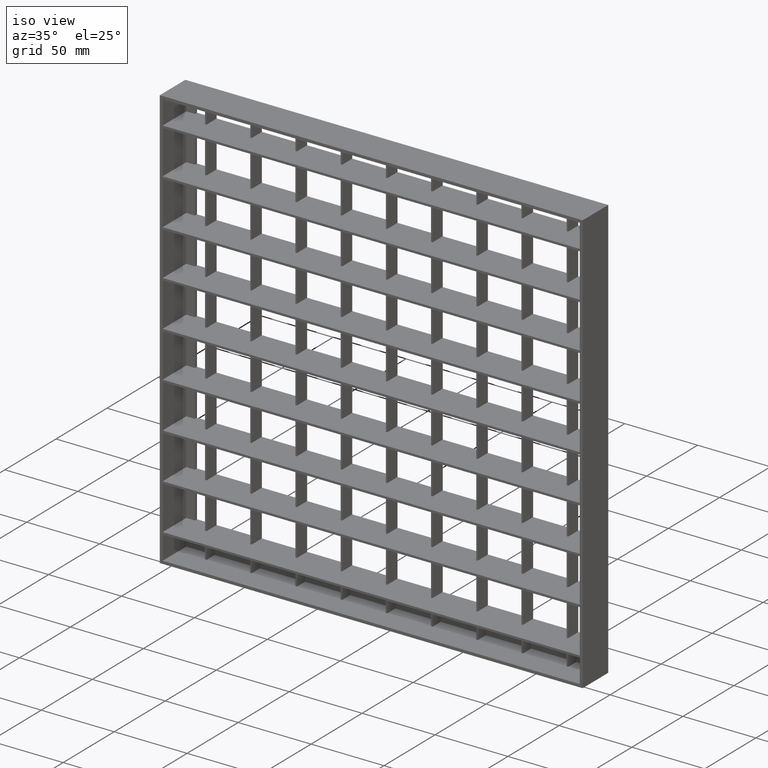
[diagram: clean part render]
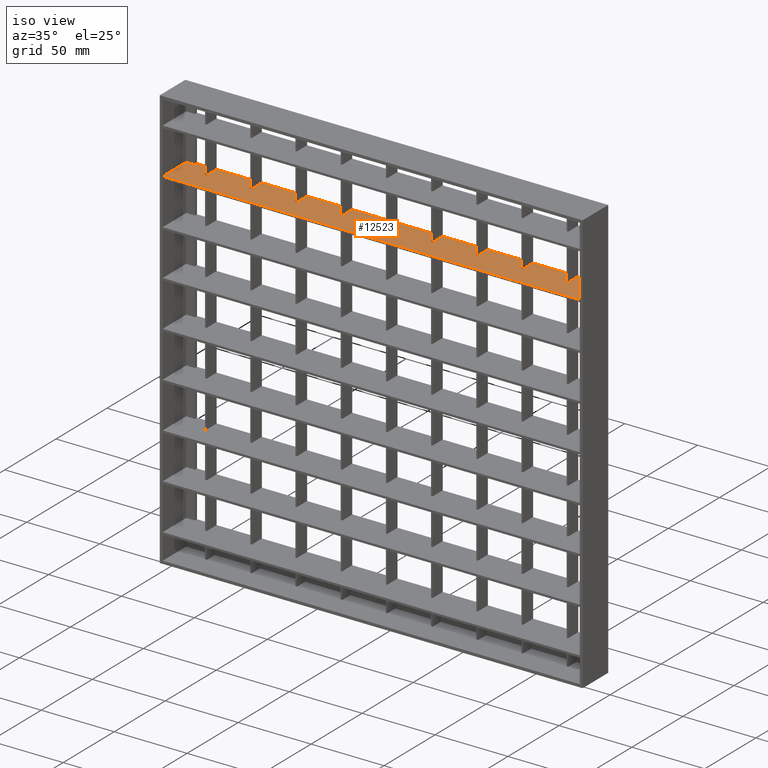
[diagram: same view with one face highlighted and labeled with its STEP entity id]
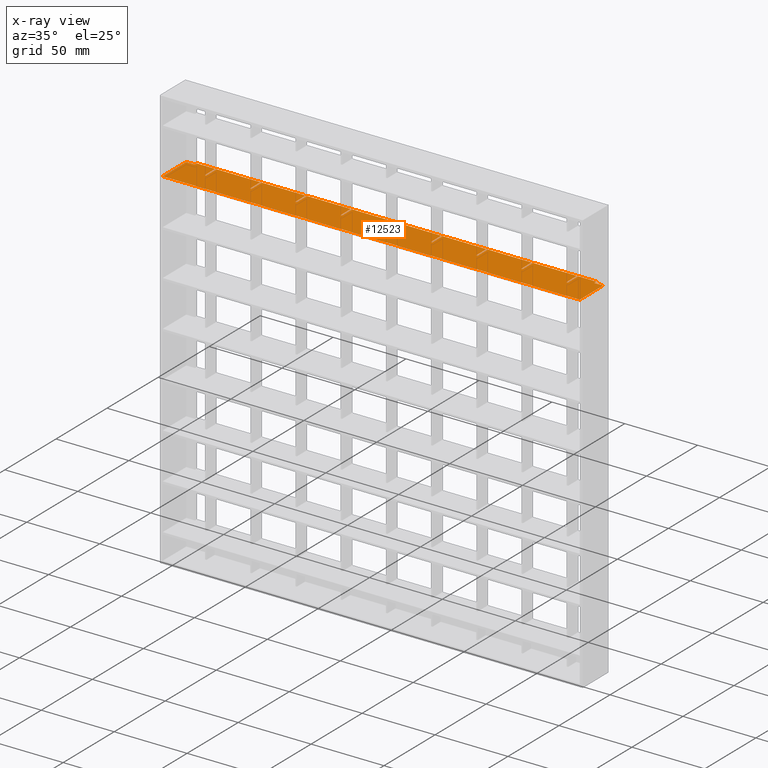
[diagram: x-ray of the same camera — body ghosted, the highlighted face saturated]
A machine part, iso view. The second image highlights one B-rep face of the part: STEP entity #12523.
The next image is the same camera in x-ray: the body ghosted, the highlighted face saturated — about 0% of this face is hidden behind the body in this view.
In plain terms, the highlighted planar face has unit normal (0, 0, 1).
Its self-contained STEP definition (entity closure, byte-faithful):
#14 = VECTOR ( 'NONE', #2227, 1000.000000000000000 ) ;
#21 = DIRECTION ( 'NONE',  ( 0.0000000000000000000, -1.000000000000000000, 0.0000000000000000000 ) ) ;
#92 = LINE ( 'NONE', #3761, #1785 ) ;
#94 = VECTOR ( 'NONE', #9238, 1000.000000000000000 ) ;
#158 = ORIENTED_EDGE ( 'NONE', *, *, #13160, .F. ) ;
#162 = CARTESIAN_POINT ( 'NONE',  ( 269.5000000000001100, -12.49999999999987700, -49.75000000000037700 ) ) ;
#224 = DIRECTION ( 'NONE',  ( -1.000000000000000000, 4.336808689942014300E-016, 0.0000000000000000000 ) ) ;
#242 = CARTESIAN_POINT ( 'NONE',  ( 206.5000000000001100, 12.50000000000009100, -49.75000000000037700 ) ) ;
#255 = VECTOR ( 'NONE', #4600, 1000.000000000000000 ) ;
#301 = CARTESIAN_POINT ( 'NONE',  ( 238.5000000000001700, -12.49999999999987700, -49.75000000000037700 ) ) ;
#304 = LINE ( 'NONE', #162, #7972 ) ;
#305 = VECTOR ( 'NONE', #1150, 1000.000000000000000 ) ;
#366 = VERTEX_POINT ( 'NONE', #13462 ) ;
#377 = VERTEX_POINT ( 'NONE', #2865 ) ;
#403 = DIRECTION ( 'NONE',  ( -1.000000000000000000, 4.336808689942014300E-016, 0.0000000000000000000 ) ) ;
#435 = CARTESIAN_POINT ( 'NONE',  ( 144.4999999999999700, -12.49999999999987700, -49.75000000000037700 ) ) ;
#470 = CARTESIAN_POINT ( 'NONE',  ( 113.4999999999999600, 2.500000000000002200, -49.75000000000037700 ) ) ;
#667 = LINE ( 'NONE', #6529, #9087 ) ;
#682 = CARTESIAN_POINT ( 'NONE',  ( 313.0449595727364500, -12.49999999999987700, -49.75000000000037700 ) ) ;
#688 = DIRECTION ( 'NONE',  ( -1.000000000000000000, 4.336808689942014300E-016, 0.0000000000000000000 ) ) ;
#691 = DIRECTION ( 'NONE',  ( -0.0000000000000000000, 1.000000000000000000, 0.0000000000000000000 ) ) ;
#737 = ORIENTED_EDGE ( 'NONE', *, *, #3270, .T. ) ;
#743 = CARTESIAN_POINT ( 'NONE',  ( 313.0449595727364500, 2.500000000000101300, -49.75000000000037700 ) ) ;
#806 = EDGE_CURVE ( 'NONE', #13485, #8645, #15232, .T. ) ;
#868 = CARTESIAN_POINT ( 'NONE',  ( 83.49999999999995700, -12.49999999999987700, -49.75000000000037700 ) ) ;
#921 = VERTEX_POINT ( 'NONE', #470 ) ;
#923 = DIRECTION ( 'NONE',  ( -0.0000000000000000000, 1.000000000000000000, 0.0000000000000000000 ) ) ;
#1024 = ORIENTED_EDGE ( 'NONE', *, *, #7274, .F. ) ;
#1035 = LINE ( 'NONE', #14538, #11109 ) ;
#1150 = DIRECTION ( 'NONE',  ( -8.673617379884035500E-016, 1.000000000000000000, 0.0000000000000000000 ) ) ;
#1164 = LINE ( 'NONE', #10029, #3775 ) ;
#1260 = EDGE_CURVE ( 'NONE', #1367, #1859, #13337, .T. ) ;
#1316 = DIRECTION ( 'NONE',  ( 1.000000000000000000, 4.336808689942014300E-016, -0.0000000000000000000 ) ) ;
#1348 = ORIENTED_EDGE ( 'NONE', *, *, #5459, .F. ) ;
#1367 = VERTEX_POINT ( 'NONE', #11258 ) ;
#1375 = ORIENTED_EDGE ( 'NONE', *, *, #11281, .T. ) ;
#1456 = EDGE_CURVE ( 'NONE', #13142, #8380, #15420, .T. ) ;
#1468 = VERTEX_POINT ( 'NONE', #7040 ) ;
#1504 = VECTOR ( 'NONE', #5454, 1000.000000000000000 ) ;
#1510 = VERTEX_POINT ( 'NONE', #9559 ) ;
#1534 = VECTOR ( 'NONE', #688, 1000.000000000000000 ) ;
#1582 = DIRECTION ( 'NONE',  ( -0.0000000000000000000, 1.000000000000000000, 0.0000000000000000000 ) ) ;
#1594 = VERTEX_POINT ( 'NONE', #9310 ) ;
#1671 = CARTESIAN_POINT ( 'NONE',  ( 313.0449595727364500, 2.499999999999983100, -49.75000000000037700 ) ) ;
#1766 = LINE ( 'NONE', #11300, #12956 ) ;
#1785 = VECTOR ( 'NONE', #9620, 1000.000000000000000 ) ;
#1797 = VERTEX_POINT ( 'NONE', #4496 ) ;
#1859 = VERTEX_POINT ( 'NONE', #7937 ) ;
#1938 = LINE ( 'NONE', #2803, #13141 ) ;
#1980 = ORIENTED_EDGE ( 'NONE', *, *, #12050, .T. ) ;
#2000 = VECTOR ( 'NONE', #6057, 1000.000000000000000 ) ;
#2056 = CARTESIAN_POINT ( 'NONE',  ( 269.5000000000001100, 2.500000000000001800, -49.75000000000037700 ) ) ;
#2059 = ORIENTED_EDGE ( 'NONE', *, *, #1456, .F. ) ;
#2060 = VECTOR ( 'NONE', #9118, 1000.000000000000000 ) ;
#2141 = DIRECTION ( 'NONE',  ( -1.000000000000000000, 4.336808689942014300E-016, 0.0000000000000000000 ) ) ;
#2149 = CARTESIAN_POINT ( 'NONE',  ( 288.0000000000001100, -12.49999999999987700, -49.75000000000037700 ) ) ;
#2211 = VECTOR ( 'NONE', #14647, 1000.000000000000000 ) ;
#2227 = DIRECTION ( 'NONE',  ( -1.000000000000000000, 0.0000000000000000000, 0.0000000000000000000 ) ) ;
#2298 = LINE ( 'NONE', #10340, #1534 ) ;
#2357 = CARTESIAN_POINT ( 'NONE',  ( 175.5000000000001100, 12.50000000000008200, -49.75000000000037700 ) ) ;
#2381 = ORIENTED_EDGE ( 'NONE', *, *, #4652, .T. ) ;
#2398 = LINE ( 'NONE', #14534, #14730 ) ;
#2401 = CARTESIAN_POINT ( 'NONE',  ( 207.5000000000001400, -12.49999999999987700, -49.75000000000037700 ) ) ;
#2408 = VECTOR ( 'NONE', #8704, 1000.000000000000000 ) ;
#2621 = VERTEX_POINT ( 'NONE', #3412 ) ;
#2628 = VECTOR ( 'NONE', #1582, 1000.000000000000000 ) ;
#2726 = LINE ( 'NONE', #7673, #11123 ) ;
#2752 = CARTESIAN_POINT ( 'NONE',  ( 145.4999999999999700, 12.50000000000007100, -49.75000000000037700 ) ) ;
#2779 = DIRECTION ( 'NONE',  ( 0.0000000000000000000, -1.000000000000000000, 0.0000000000000000000 ) ) ;
#2803 = CARTESIAN_POINT ( 'NONE',  ( 82.49999999999995700, -12.49999999999987700, -49.75000000000037700 ) ) ;
#2834 = DIRECTION ( 'NONE',  ( -1.000000000000000000, -3.061616997868382600E-016, 0.0000000000000000000 ) ) ;
#2865 = CARTESIAN_POINT ( 'NONE',  ( 7.999999999999994700, 12.50000000000000500, -49.75000000000037700 ) ) ;
#2937 = LINE ( 'NONE', #6003, #2000 ) ;
#2942 = LINE ( 'NONE', #4259, #14340 ) ;
#3060 = EDGE_CURVE ( 'NONE', #10833, #7427, #11610, .T. ) ;
#3165 = ORIENTED_EDGE ( 'NONE', *, *, #5640, .F. ) ;
#3270 = EDGE_CURVE ( 'NONE', #4948, #13756, #1164, .T. ) ;
#3412 = CARTESIAN_POINT ( 'NONE',  ( 21.49999999999996400, 2.500000000000002200, -49.75000000000037700 ) ) ;
#3445 = VECTOR ( 'NONE', #224, 1000.000000000000000 ) ;
#3450 = LINE ( 'NONE', #10642, #255 ) ;
#3452 = DIRECTION ( 'NONE',  ( -1.000000000000000000, 0.0000000000000000000, 0.0000000000000000000 ) ) ;
#3456 = CARTESIAN_POINT ( 'NONE',  ( 83.49999999999995700, 12.50000000000005300, -49.75000000000037700 ) ) ;
#3486 = ORIENTED_EDGE ( 'NONE', *, *, #12661, .T. ) ;
#3535 = VERTEX_POINT ( 'NONE', #6979 ) ;
#3722 = EDGE_LOOP ( 'NONE', ( #8184, #13285, #10387, #10248, #11620, #2381, #13446, #5255, #13487, #6821, #4673, #14271, #6320, #7932, #12884, #1980, #7638, #7156, #3165, #15532, #6710, #9218, #15003, #12302, #13017, #1348, #5209, #13856, #737, #1024, #158, #8493, #1375, #12099, #10530, #10448, #5234, #14784, #4239, #4540, #2059, #14577, #8916, #3486 ) ) ;
#3761 = CARTESIAN_POINT ( 'NONE',  ( 2.000000000000002700, -12.50000000000000000, -49.75000000000034800 ) ) ;
#3775 = VECTOR ( 'NONE', #14849, 1000.000000000000000 ) ;
#3946 = CARTESIAN_POINT ( 'NONE',  ( 313.0449595727364500, 12.50000000000012400, -49.75000000000037700 ) ) ;
#3952 = VECTOR ( 'NONE', #14280, 1000.000000000000000 ) ;
#4012 = EDGE_CURVE ( 'NONE', #10833, #14935, #12137, .T. ) ;
#4036 = EDGE_CURVE ( 'NONE', #1594, #7427, #6534, .T. ) ;
#4146 = LINE ( 'NONE', #4303, #7510 ) ;
#4166 = EDGE_CURVE ( 'NONE', #1797, #9855, #4871, .T. ) ;
#4239 = ORIENTED_EDGE ( 'NONE', *, *, #12678, .T. ) ;
#4259 = CARTESIAN_POINT ( 'NONE',  ( 313.0449595727364500, 2.500000000000128800, -49.75000000000037700 ) ) ;
#4303 = CARTESIAN_POINT ( 'NONE',  ( 268.5000000000001100, -12.49999999999987700, -49.75000000000037700 ) ) ;
#4464 = CARTESIAN_POINT ( 'NONE',  ( 313.0449595727364500, 12.50000000000012400, -49.75000000000037700 ) ) ;
#4496 = CARTESIAN_POINT ( 'NONE',  ( 82.49999999999995700, 2.500000000000000900, -49.75000000000037700 ) ) ;
#4540 = ORIENTED_EDGE ( 'NONE', *, *, #15141, .T. ) ;
#4559 = VERTEX_POINT ( 'NONE', #7310 ) ;
#4597 = VECTOR ( 'NONE', #21, 1000.000000000000000 ) ;
#4600 = DIRECTION ( 'NONE',  ( -1.000000000000000000, -3.061616997868382600E-016, 0.0000000000000000000 ) ) ;
#4640 = LINE ( 'NONE', #5745, #13773 ) ;
#4642 = LINE ( 'NONE', #13483, #2211 ) ;
#4652 = EDGE_CURVE ( 'NONE', #11149, #12003, #12471, .T. ) ;
#4673 = ORIENTED_EDGE ( 'NONE', *, *, #1260, .T. ) ;
#4750 = DIRECTION ( 'NONE',  ( -1.000000000000000000, -3.061616997868382600E-016, 0.0000000000000000000 ) ) ;
#4786 = EDGE_CURVE ( 'NONE', #1859, #15291, #15310, .T. ) ;
#4794 = CARTESIAN_POINT ( 'NONE',  ( 20.49999999999996400, 12.50000000000000200, -49.75000000000037700 ) ) ;
#4871 = LINE ( 'NONE', #743, #2060 ) ;
#4940 = CARTESIAN_POINT ( 'NONE',  ( 2.000000000000002700, 10.50000000000000500, -49.75000000000037700 ) ) ;
#4948 = VERTEX_POINT ( 'NONE', #8161 ) ;
#5005 = VERTEX_POINT ( 'NONE', #10863 ) ;
#5097 = EDGE_CURVE ( 'NONE', #6989, #8645, #2937, .T. ) ;
#5129 = DIRECTION ( 'NONE',  ( -0.0000000000000000000, 1.000000000000000000, 0.0000000000000000000 ) ) ;
#5209 = ORIENTED_EDGE ( 'NONE', *, *, #4166, .F. ) ;
#5234 = ORIENTED_EDGE ( 'NONE', *, *, #9942, .T. ) ;
#5255 = ORIENTED_EDGE ( 'NONE', *, *, #11321, .T. ) ;
#5454 = DIRECTION ( 'NONE',  ( 0.0000000000000000000, -1.000000000000000000, 0.0000000000000000000 ) ) ;
#5459 = EDGE_CURVE ( 'NONE', #9855, #11520, #15090, .T. ) ;
#5505 = CARTESIAN_POINT ( 'NONE',  ( 114.4999999999999600, -12.49999999999987700, -49.75000000000037700 ) ) ;
#5516 = LINE ( 'NONE', #2401, #4597 ) ;
#5569 = LINE ( 'NONE', #1671, #9881 ) ;
#5636 = CARTESIAN_POINT ( 'NONE',  ( 269.5000000000001100, 12.50000000000000200, -49.75000000000034800 ) ) ;
#5640 = EDGE_CURVE ( 'NONE', #14935, #13485, #11152, .T. ) ;
#5745 = CARTESIAN_POINT ( 'NONE',  ( 313.0449595727364500, 2.499999999999969400, -49.75000000000037700 ) ) ;
#5842 = CARTESIAN_POINT ( 'NONE',  ( 313.0449595727364500, -12.49999999999987700, -49.75000000000037700 ) ) ;
#5855 = VECTOR ( 'NONE', #5129, 1000.000000000000000 ) ;
#5863 = VERTEX_POINT ( 'NONE', #7657 ) ;
#5925 = CARTESIAN_POINT ( 'NONE',  ( 20.49999999999996400, 2.500000000000001800, -49.75000000000037700 ) ) ;
#6003 = CARTESIAN_POINT ( 'NONE',  ( 313.0449595727364500, 12.50000000000012400, -49.75000000000037700 ) ) ;
#6057 = DIRECTION ( 'NONE',  ( -1.000000000000000000, -3.061616997868382600E-016, 0.0000000000000000000 ) ) ;
#6114 = AXIS2_PLACEMENT_3D ( 'NONE', #682, #13935, #10334 ) ;
#6171 = VECTOR ( 'NONE', #2834, 1000.000000000000000 ) ;
#6196 = VERTEX_POINT ( 'NONE', #2056 ) ;
#6264 = DIRECTION ( 'NONE',  ( -1.000000000000000000, -3.061616997868382600E-016, 0.0000000000000000000 ) ) ;
#6320 = ORIENTED_EDGE ( 'NONE', *, *, #11037, .T. ) ;
#6395 = DIRECTION ( 'NONE',  ( 0.0000000000000000000, -1.000000000000000000, 0.0000000000000000000 ) ) ;
#6480 = CARTESIAN_POINT ( 'NONE',  ( 237.5000000000001400, -12.49999999999987700, -49.75000000000037700 ) ) ;
#6529 = CARTESIAN_POINT ( 'NONE',  ( 20.49999999999996400, -12.49999999999987700, -49.75000000000037700 ) ) ;
#6534 = LINE ( 'NONE', #5505, #14191 ) ;
#6592 = VECTOR ( 'NONE', #4750, 1000.000000000000000 ) ;
#6629 = CARTESIAN_POINT ( 'NONE',  ( 144.4999999999999700, 2.500000000000001800, -49.75000000000037700 ) ) ;
#6673 = VERTEX_POINT ( 'NONE', #5636 ) ;
#6710 = ORIENTED_EDGE ( 'NONE', *, *, #3060, .T. ) ;
#6821 = ORIENTED_EDGE ( 'NONE', *, *, #13373, .T. ) ;
#6859 = CARTESIAN_POINT ( 'NONE',  ( 144.4999999999999700, 12.50000000000000200, -49.75000000000037700 ) ) ;
#6928 = LINE ( 'NONE', #12733, #9185 ) ;
#6979 = CARTESIAN_POINT ( 'NONE',  ( 113.4999999999999600, 12.50000000000000200, -49.75000000000037700 ) ) ;
#6989 = VERTEX_POINT ( 'NONE', #2357 ) ;
#6990 = DIRECTION ( 'NONE',  ( 0.0000000000000000000, -1.000000000000000000, 0.0000000000000000000 ) ) ;
#7040 = CARTESIAN_POINT ( 'NONE',  ( 51.49999999999993600, 2.500000000000001300, -49.75000000000037700 ) ) ;
#7051 = CARTESIAN_POINT ( 'NONE',  ( 52.49999999999993600, 2.500000000000002200, -49.75000000000037700 ) ) ;
#7113 = LINE ( 'NONE', #14169, #3952 ) ;
#7134 = CARTESIAN_POINT ( 'NONE',  ( 313.0449595727364500, 2.500000000000075100, -49.75000000000037700 ) ) ;
#7156 = ORIENTED_EDGE ( 'NONE', *, *, #806, .F. ) ;
#7226 = DIRECTION ( 'NONE',  ( -0.0000000000000000000, 1.000000000000000000, 0.0000000000000000000 ) ) ;
#7274 = EDGE_CURVE ( 'NONE', #13439, #13756, #1766, .T. ) ;
#7298 = LINE ( 'NONE', #3946, #6171 ) ;
#7310 = CARTESIAN_POINT ( 'NONE',  ( 207.5000000000001400, 12.50000000000000200, -49.75000000000034800 ) ) ;
#7398 = CARTESIAN_POINT ( 'NONE',  ( 313.0449595727364500, 2.499999999999955600, -49.75000000000037700 ) ) ;
#7419 = DIRECTION ( 'NONE',  ( 0.0000000000000000000, -1.000000000000000000, 0.0000000000000000000 ) ) ;
#7427 = VERTEX_POINT ( 'NONE', #14131 ) ;
#7510 = VECTOR ( 'NONE', #691, 1000.000000000000000 ) ;
#7638 = ORIENTED_EDGE ( 'NONE', *, *, #5097, .T. ) ;
#7657 = CARTESIAN_POINT ( 'NONE',  ( 237.5000000000001400, 2.500000000000002200, -49.75000000000037700 ) ) ;
#7673 = CARTESIAN_POINT ( 'NONE',  ( 21.49999999999996400, -12.49999999999987700, -49.75000000000037700 ) ) ;
#7755 = EDGE_CURVE ( 'NONE', #3535, #11520, #8096, .T. ) ;
#7932 = ORIENTED_EDGE ( 'NONE', *, *, #12229, .T. ) ;
#7937 = CARTESIAN_POINT ( 'NONE',  ( 206.5000000000001100, 2.500000000000002200, -49.75000000000037700 ) ) ;
#7965 = DIRECTION ( 'NONE',  ( -0.0000000000000000000, 1.000000000000000000, 0.0000000000000000000 ) ) ;
#7972 = VECTOR ( 'NONE', #2779, 1000.000000000000000 ) ;
#7992 = LINE ( 'NONE', #9363, #13951 ) ;
#8012 = EDGE_CURVE ( 'NONE', #11983, #6673, #2398, .T. ) ;
#8021 = CARTESIAN_POINT ( 'NONE',  ( 282.0000000000001700, 12.50000000000000700, -49.75000000000034800 ) ) ;
#8033 = CARTESIAN_POINT ( 'NONE',  ( 288.0000000000001100, -12.49999999999997300, -49.75000000000037700 ) ) ;
#8053 = PLANE ( 'NONE',  #6114 ) ;
#8061 = DIRECTION ( 'NONE',  ( -1.000000000000000000, -3.061616997868382600E-016, 0.0000000000000000000 ) ) ;
#8096 = LINE ( 'NONE', #4464, #14444 ) ;
#8133 = CARTESIAN_POINT ( 'NONE',  ( 51.49999999999996400, 12.50000000000000200, -49.75000000000037700 ) ) ;
#8161 = CARTESIAN_POINT ( 'NONE',  ( 82.49999999999995700, 12.50000000000000200, -49.75000000000037700 ) ) ;
#8184 = ORIENTED_EDGE ( 'NONE', *, *, #8012, .T. ) ;
#8258 = EDGE_CURVE ( 'NONE', #377, #9372, #14482, .T. ) ;
#8342 = LINE ( 'NONE', #9180, #94 ) ;
#8380 = VERTEX_POINT ( 'NONE', #15479 ) ;
#8405 = EDGE_CURVE ( 'NONE', #12272, #11149, #3450, .T. ) ;
#8493 = ORIENTED_EDGE ( 'NONE', *, *, #8696, .F. ) ;
#8558 = VECTOR ( 'NONE', #6990, 1000.000000000000000 ) ;
#8571 = VERTEX_POINT ( 'NONE', #11979 ) ;
#8645 = VERTEX_POINT ( 'NONE', #2752 ) ;
#8685 = CARTESIAN_POINT ( 'NONE',  ( 268.5000000000001100, 12.50000000000011000, -49.75000000000037700 ) ) ;
#8696 = EDGE_CURVE ( 'NONE', #8973, #1468, #12936, .T. ) ;
#8704 = DIRECTION ( 'NONE',  ( -0.0000000000000000000, 1.000000000000000000, 0.0000000000000000000 ) ) ;
#8717 = EDGE_CURVE ( 'NONE', #4948, #1797, #1938, .T. ) ;
#8758 = CARTESIAN_POINT ( 'NONE',  ( 206.5000000000001100, -12.49999999999987700, -49.75000000000037700 ) ) ;
#8848 = VECTOR ( 'NONE', #9041, 1000.000000000000000 ) ;
#8916 = ORIENTED_EDGE ( 'NONE', *, *, #10097, .T. ) ;
#8973 = VERTEX_POINT ( 'NONE', #8133 ) ;
#9041 = DIRECTION ( 'NONE',  ( -1.000000000000000000, -3.061616997868382600E-016, 0.0000000000000000000 ) ) ;
#9087 = VECTOR ( 'NONE', #10194, 1000.000000000000000 ) ;
#9118 = DIRECTION ( 'NONE',  ( 1.000000000000000000, 4.336808689942014300E-016, -0.0000000000000000000 ) ) ;
#9121 = CARTESIAN_POINT ( 'NONE',  ( 237.5000000000001400, 12.50000000000010100, -49.75000000000037700 ) ) ;
#9180 = CARTESIAN_POINT ( 'NONE',  ( 313.0449595727364500, 2.500000000000115000, -49.75000000000037700 ) ) ;
#9185 = VECTOR ( 'NONE', #14936, 1000.000000000000000 ) ;
#9215 = DIRECTION ( 'NONE',  ( 1.000000000000000000, 4.336808689942014300E-016, -0.0000000000000000000 ) ) ;
#9218 = ORIENTED_EDGE ( 'NONE', *, *, #4036, .F. ) ;
#9238 = DIRECTION ( 'NONE',  ( 1.000000000000000000, 4.336808689942014300E-016, -0.0000000000000000000 ) ) ;
#9310 = CARTESIAN_POINT ( 'NONE',  ( 114.4999999999999600, 2.500000000000002200, -49.75000000000037700 ) ) ;
#9323 = LINE ( 'NONE', #11621, #8558 ) ;
#9325 = VERTEX_POINT ( 'NONE', #4940 ) ;
#9363 = CARTESIAN_POINT ( 'NONE',  ( 2.000000000000002700, 10.50000000000000500, -49.75000000000034800 ) ) ;
#9372 = VERTEX_POINT ( 'NONE', #9938 ) ;
#9385 = CARTESIAN_POINT ( 'NONE',  ( 313.0449595727364500, 12.50000000000012400, -49.75000000000037700 ) ) ;
#9415 = CARTESIAN_POINT ( 'NONE',  ( 282.0000000000000600, 10.50000000000019200, -49.75000000000037700 ) ) ;
#9494 = DIRECTION ( 'NONE',  ( -1.000000000000000000, -3.061616997868382600E-016, 0.0000000000000000000 ) ) ;
#9511 = EDGE_CURVE ( 'NONE', #1510, #11076, #2298, .T. ) ;
#9559 = CARTESIAN_POINT ( 'NONE',  ( 176.5000000000001100, 2.500000000000001800, -49.75000000000037700 ) ) ;
#9620 = DIRECTION ( 'NONE',  ( -0.0000000000000000000, -1.000000000000000000, 0.0000000000000000000 ) ) ;
#9675 = VECTOR ( 'NONE', #12910, 1000.000000000000000 ) ;
#9691 = CARTESIAN_POINT ( 'NONE',  ( 175.5000000000001100, 2.500000000000002200, -49.75000000000037700 ) ) ;
#9826 = VECTOR ( 'NONE', #10602, 1000.000000000000000 ) ;
#9855 = VERTEX_POINT ( 'NONE', #13850 ) ;
#9881 = VECTOR ( 'NONE', #403, 1000.000000000000000 ) ;
#9882 = VERTEX_POINT ( 'NONE', #9121 ) ;
#9909 = VECTOR ( 'NONE', #9494, 1000.000000000000000 ) ;
#9938 = CARTESIAN_POINT ( 'NONE',  ( 7.999999999999992900, 10.50000000000000500, -49.75000000000037700 ) ) ;
#9942 = EDGE_CURVE ( 'NONE', #13391, #377, #6928, .T. ) ;
#10029 = CARTESIAN_POINT ( 'NONE',  ( 313.0449595727364500, 12.50000000000012400, -49.75000000000037700 ) ) ;
#10097 = EDGE_CURVE ( 'NONE', #11698, #10781, #15371, .T. ) ;
#10194 = DIRECTION ( 'NONE',  ( 0.0000000000000000000, -1.000000000000000000, 0.0000000000000000000 ) ) ;
#10248 = ORIENTED_EDGE ( 'NONE', *, *, #10519, .T. ) ;
#10269 = DIRECTION ( 'NONE',  ( -0.0000000000000000000, 1.000000000000000000, 0.0000000000000000000 ) ) ;
#10334 = DIRECTION ( 'NONE',  ( 1.000000000000000000, 0.0000000000000000000, -0.0000000000000000000 ) ) ;
#10340 = CARTESIAN_POINT ( 'NONE',  ( 313.0449595727364500, 2.499999999999943200, -49.75000000000037700 ) ) ;
#10387 = ORIENTED_EDGE ( 'NONE', *, *, #11908, .T. ) ;
#10448 = ORIENTED_EDGE ( 'NONE', *, *, #14768, .F. ) ;
#10519 = EDGE_CURVE ( 'NONE', #366, #12272, #4146, .T. ) ;
#10530 = ORIENTED_EDGE ( 'NONE', *, *, #14323, .F. ) ;
#10602 = DIRECTION ( 'NONE',  ( 0.0000000000000000000, -1.000000000000000000, 0.0000000000000000000 ) ) ;
#10619 = VECTOR ( 'NONE', #7419, 1000.000000000000000 ) ;
#10642 = CARTESIAN_POINT ( 'NONE',  ( 313.0449595727364500, 12.50000000000012400, -49.75000000000037700 ) ) ;
#10781 = VERTEX_POINT ( 'NONE', #14006 ) ;
#10806 = LINE ( 'NONE', #12058, #14747 ) ;
#10833 = VERTEX_POINT ( 'NONE', #6859 ) ;
#10863 = CARTESIAN_POINT ( 'NONE',  ( 176.5000000000001100, 12.50000000000000200, -49.75000000000037700 ) ) ;
#10927 = VERTEX_POINT ( 'NONE', #5925 ) ;
#11018 = LINE ( 'NONE', #6480, #2628 ) ;
#11032 = EDGE_CURVE ( 'NONE', #9882, #4559, #7113, .T. ) ;
#11037 = EDGE_CURVE ( 'NONE', #15291, #5005, #15158, .T. ) ;
#11076 = VERTEX_POINT ( 'NONE', #9691 ) ;
#11082 = VECTOR ( 'NONE', #13456, 1000.000000000000000 ) ;
#11109 = VECTOR ( 'NONE', #1316, 1000.000000000000000 ) ;
#11123 = VECTOR ( 'NONE', #10269, 1000.000000000000000 ) ;
#11149 = VERTEX_POINT ( 'NONE', #13380 ) ;
#11152 = LINE ( 'NONE', #7134, #9675 ) ;
#11201 = DIRECTION ( 'NONE',  ( -0.0000000000000000000, 1.000000000000000000, 0.0000000000000000000 ) ) ;
#11258 = CARTESIAN_POINT ( 'NONE',  ( 207.5000000000001400, 2.500000000000001800, -49.75000000000037700 ) ) ;
#11281 = EDGE_CURVE ( 'NONE', #8973, #8571, #7298, .T. ) ;
#11300 = CARTESIAN_POINT ( 'NONE',  ( 52.49999999999993600, -12.49999999999987700, -49.75000000000037700 ) ) ;
#11321 = EDGE_CURVE ( 'NONE', #5863, #9882, #11018, .T. ) ;
#11520 = VERTEX_POINT ( 'NONE', #3456 ) ;
#11522 = CARTESIAN_POINT ( 'NONE',  ( 52.49999999999999300, 12.50000000000004400, -49.75000000000037700 ) ) ;
#11610 = LINE ( 'NONE', #12554, #8848 ) ;
#11620 = ORIENTED_EDGE ( 'NONE', *, *, #8405, .T. ) ;
#11621 = CARTESIAN_POINT ( 'NONE',  ( 113.4999999999999600, -12.49999999999987700, -49.75000000000037700 ) ) ;
#11691 = VECTOR ( 'NONE', #923, 1000.000000000000000 ) ;
#11695 = LINE ( 'NONE', #9415, #305 ) ;
#11698 = VERTEX_POINT ( 'NONE', #15499 ) ;
#11801 = CARTESIAN_POINT ( 'NONE',  ( 238.5000000000001700, 2.500000000000001800, -49.75000000000037700 ) ) ;
#11908 = EDGE_CURVE ( 'NONE', #6196, #366, #5569, .T. ) ;
#11979 = CARTESIAN_POINT ( 'NONE',  ( 21.49999999999996400, 12.50000000000003600, -49.75000000000037700 ) ) ;
#11983 = VERTEX_POINT ( 'NONE', #8021 ) ;
#12003 = VERTEX_POINT ( 'NONE', #11801 ) ;
#12050 = EDGE_CURVE ( 'NONE', #11076, #6989, #10806, .T. ) ;
#12058 = CARTESIAN_POINT ( 'NONE',  ( 175.5000000000001100, -12.49999999999987700, -49.75000000000037700 ) ) ;
#12099 = ORIENTED_EDGE ( 'NONE', *, *, #13092, .F. ) ;
#12137 = LINE ( 'NONE', #435, #1504 ) ;
#12229 = EDGE_CURVE ( 'NONE', #5005, #1510, #4642, .T. ) ;
#12258 = CARTESIAN_POINT ( 'NONE',  ( 145.4999999999999700, -12.49999999999987700, -49.75000000000037700 ) ) ;
#12272 = VERTEX_POINT ( 'NONE', #8685 ) ;
#12302 = ORIENTED_EDGE ( 'NONE', *, *, #13895, .F. ) ;
#12471 = LINE ( 'NONE', #301, #10619 ) ;
#12523 = ADVANCED_FACE ( 'NONE', ( #14138 ), #8053, .T. ) ;
#12554 = CARTESIAN_POINT ( 'NONE',  ( 313.0449595727364500, 12.50000000000012400, -49.75000000000037700 ) ) ;
#12661 = EDGE_CURVE ( 'NONE', #10781, #11983, #11695, .T. ) ;
#12678 = EDGE_CURVE ( 'NONE', #9372, #9325, #7992, .T. ) ;
#12733 = CARTESIAN_POINT ( 'NONE',  ( 313.0449595727364500, 12.50000000000012400, -49.75000000000037700 ) ) ;
#12814 = DIRECTION ( 'NONE',  ( -8.673617379884037400E-016, -1.000000000000000000, 0.0000000000000000000 ) ) ;
#12884 = ORIENTED_EDGE ( 'NONE', *, *, #9511, .T. ) ;
#12910 = DIRECTION ( 'NONE',  ( 1.000000000000000000, 4.336808689942014300E-016, -0.0000000000000000000 ) ) ;
#12936 = LINE ( 'NONE', #13401, #11082 ) ;
#12956 = VECTOR ( 'NONE', #11201, 1000.000000000000000 ) ;
#13017 = ORIENTED_EDGE ( 'NONE', *, *, #7755, .T. ) ;
#13092 = EDGE_CURVE ( 'NONE', #2621, #8571, #2726, .T. ) ;
#13141 = VECTOR ( 'NONE', #6395, 1000.000000000000000 ) ;
#13142 = VERTEX_POINT ( 'NONE', #8033 ) ;
#13160 = EDGE_CURVE ( 'NONE', #1468, #13439, #8342, .T. ) ;
#13163 = VECTOR ( 'NONE', #12814, 1000.000000000000000 ) ;
#13285 = ORIENTED_EDGE ( 'NONE', *, *, #14508, .T. ) ;
#13337 = LINE ( 'NONE', #7398, #3445 ) ;
#13373 = EDGE_CURVE ( 'NONE', #4559, #1367, #5516, .T. ) ;
#13380 = CARTESIAN_POINT ( 'NONE',  ( 238.5000000000001700, 12.50000000000000200, -49.75000000000034800 ) ) ;
#13391 = VERTEX_POINT ( 'NONE', #4794 ) ;
#13401 = CARTESIAN_POINT ( 'NONE',  ( 51.49999999999993600, -12.49999999999987700, -49.75000000000037700 ) ) ;
#13427 = CARTESIAN_POINT ( 'NONE',  ( 145.4999999999999700, 2.500000000000002200, -49.75000000000037700 ) ) ;
#13439 = VERTEX_POINT ( 'NONE', #7051 ) ;
#13446 = ORIENTED_EDGE ( 'NONE', *, *, #14001, .T. ) ;
#13456 = DIRECTION ( 'NONE',  ( 0.0000000000000000000, -1.000000000000000000, 0.0000000000000000000 ) ) ;
#13462 = CARTESIAN_POINT ( 'NONE',  ( 268.5000000000001100, 2.500000000000002200, -49.75000000000037700 ) ) ;
#13483 = CARTESIAN_POINT ( 'NONE',  ( 176.5000000000001100, -12.49999999999987700, -49.75000000000037700 ) ) ;
#13485 = VERTEX_POINT ( 'NONE', #13427 ) ;
#13487 = ORIENTED_EDGE ( 'NONE', *, *, #11032, .T. ) ;
#13559 = EDGE_CURVE ( 'NONE', #921, #1594, #1035, .T. ) ;
#13734 = LINE ( 'NONE', #2149, #9826 ) ;
#13756 = VERTEX_POINT ( 'NONE', #11522 ) ;
#13773 = VECTOR ( 'NONE', #2141, 1000.000000000000000 ) ;
#13850 = CARTESIAN_POINT ( 'NONE',  ( 83.49999999999995700, 2.500000000000002200, -49.75000000000037700 ) ) ;
#13856 = ORIENTED_EDGE ( 'NONE', *, *, #8717, .F. ) ;
#13895 = EDGE_CURVE ( 'NONE', #3535, #921, #9323, .T. ) ;
#13935 = DIRECTION ( 'NONE',  ( 0.0000000000000000000, 0.0000000000000000000, 1.000000000000000000 ) ) ;
#13951 = VECTOR ( 'NONE', #3452, 1000.000000000000000 ) ;
#14001 = EDGE_CURVE ( 'NONE', #12003, #5863, #4640, .T. ) ;
#14004 = CARTESIAN_POINT ( 'NONE',  ( 145.0000000000000600, 10.50000000000000500, -49.75000000000037700 ) ) ;
#14006 = CARTESIAN_POINT ( 'NONE',  ( 282.0000000000000600, 10.50000000000000500, -49.75000000000037700 ) ) ;
#14131 = CARTESIAN_POINT ( 'NONE',  ( 114.4999999999999600, 12.50000000000006400, -49.75000000000037700 ) ) ;
#14138 = FACE_OUTER_BOUND ( 'NONE', #3722, .T. ) ;
#14169 = CARTESIAN_POINT ( 'NONE',  ( 313.0449595727364500, 12.50000000000012400, -49.75000000000037700 ) ) ;
#14191 = VECTOR ( 'NONE', #7965, 1000.000000000000000 ) ;
#14271 = ORIENTED_EDGE ( 'NONE', *, *, #4786, .T. ) ;
#14280 = DIRECTION ( 'NONE',  ( -1.000000000000000000, -3.061616997868382600E-016, 0.0000000000000000000 ) ) ;
#14323 = EDGE_CURVE ( 'NONE', #10927, #2621, #2942, .T. ) ;
#14340 = VECTOR ( 'NONE', #9215, 1000.000000000000000 ) ;
#14444 = VECTOR ( 'NONE', #8061, 1000.000000000000000 ) ;
#14482 = LINE ( 'NONE', #15163, #13163 ) ;
#14508 = EDGE_CURVE ( 'NONE', #6673, #6196, #304, .T. ) ;
#14534 = CARTESIAN_POINT ( 'NONE',  ( 313.0449595727364500, 12.50000000000012400, -49.75000000000037700 ) ) ;
#14538 = CARTESIAN_POINT ( 'NONE',  ( 313.0449595727364500, 2.500000000000088800, -49.75000000000037700 ) ) ;
#14577 = ORIENTED_EDGE ( 'NONE', *, *, #15085, .F. ) ;
#14647 = DIRECTION ( 'NONE',  ( 0.0000000000000000000, -1.000000000000000000, 0.0000000000000000000 ) ) ;
#14730 = VECTOR ( 'NONE', #6264, 1000.000000000000000 ) ;
#14747 = VECTOR ( 'NONE', #7226, 1000.000000000000000 ) ;
#14768 = EDGE_CURVE ( 'NONE', #13391, #10927, #667, .T. ) ;
#14784 = ORIENTED_EDGE ( 'NONE', *, *, #8258, .T. ) ;
#14849 = DIRECTION ( 'NONE',  ( -1.000000000000000000, -3.061616997868382600E-016, 0.0000000000000000000 ) ) ;
#14935 = VERTEX_POINT ( 'NONE', #6629 ) ;
#14936 = DIRECTION ( 'NONE',  ( -1.000000000000000000, -3.061616997868382600E-016, 0.0000000000000000000 ) ) ;
#15003 = ORIENTED_EDGE ( 'NONE', *, *, #13559, .F. ) ;
#15085 = EDGE_CURVE ( 'NONE', #11698, #13142, #13734, .T. ) ;
#15090 = LINE ( 'NONE', #868, #11691 ) ;
#15141 = EDGE_CURVE ( 'NONE', #9325, #8380, #92, .T. ) ;
#15158 = LINE ( 'NONE', #9385, #9909 ) ;
#15163 = CARTESIAN_POINT ( 'NONE',  ( 7.999999999999992900, 10.50000000000000500, -49.75000000000034800 ) ) ;
#15232 = LINE ( 'NONE', #12258, #5855 ) ;
#15291 = VERTEX_POINT ( 'NONE', #242 ) ;
#15310 = LINE ( 'NONE', #8758, #2408 ) ;
#15371 = LINE ( 'NONE', #14004, #14 ) ;
#15420 = LINE ( 'NONE', #5842, #6592 ) ;
#15479 = CARTESIAN_POINT ( 'NONE',  ( 2.000000000000001800, -12.49999999999997300, -49.75000000000037700 ) ) ;
#15499 = CARTESIAN_POINT ( 'NONE',  ( 288.0000000000000600, 10.50000000000000500, -49.75000000000037700 ) ) ;
#15532 = ORIENTED_EDGE ( 'NONE', *, *, #4012, .F. ) ;